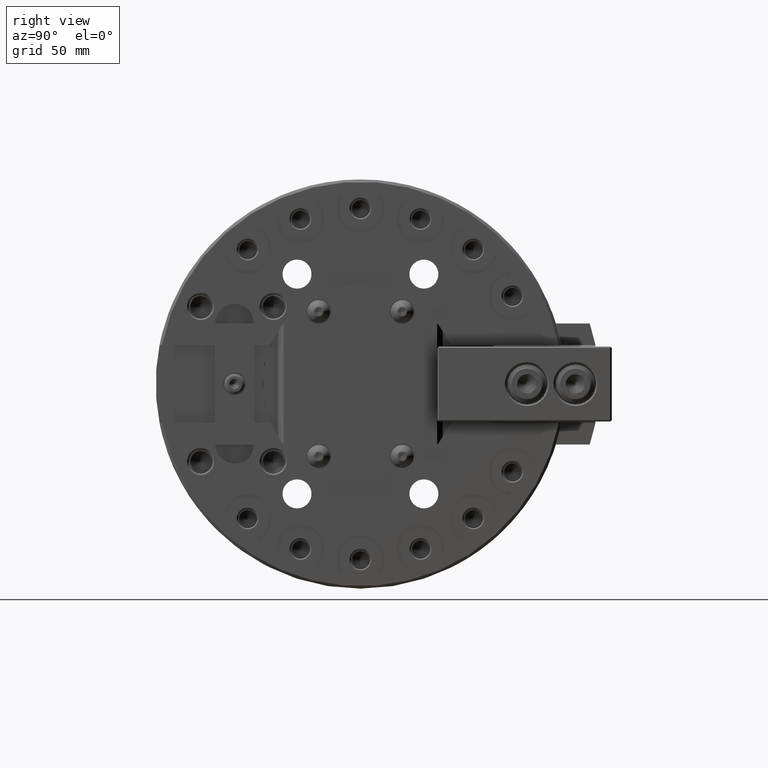
[diagram: clean part render]
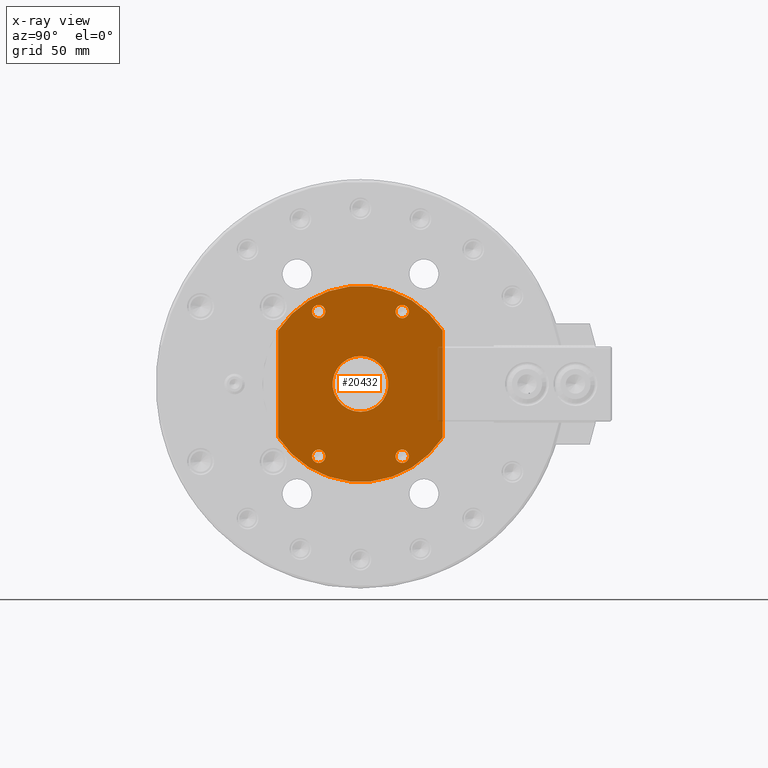
[diagram: x-ray — body ghosted, one internal face saturated and labeled with its STEP entity id]
A machine part, right view, then the same camera in x-ray: the body is ghosted and one INTERNAL B-rep face — a face not visible from any outside direction — is saturated and labeled: STEP entity #20432.
In plain terms, the highlighted planar face has unit normal (-1, 0, 0).
Its self-contained STEP definition (entity closure, byte-faithful):
#1413=LINE('',#32249,#3530);
#1414=LINE('',#32251,#3531);
#3530=VECTOR('',#26326,1000.);
#3531=VECTOR('',#26327,1000.);
#7653=ORIENTED_EDGE('',*,*,#11717,.T.);
#7654=ORIENTED_EDGE('',*,*,#11718,.F.);
#7655=ORIENTED_EDGE('',*,*,#11719,.F.);
#7656=ORIENTED_EDGE('',*,*,#11715,.F.);
#7657=ORIENTED_EDGE('',*,*,#11720,.T.);
#7658=ORIENTED_EDGE('',*,*,#11721,.T.);
#7659=ORIENTED_EDGE('',*,*,#11722,.T.);
#7660=ORIENTED_EDGE('',*,*,#11723,.T.);
#7661=ORIENTED_EDGE('',*,*,#11724,.F.);
#11715=EDGE_CURVE('',#14121,#14122,#15472,.T.);
#11717=EDGE_CURVE('',#14123,#14123,#15473,.T.);
#11718=EDGE_CURVE('',#14124,#14124,#15474,.T.);
#11719=EDGE_CURVE('',#14122,#14125,#1413,.T.);
#11720=EDGE_CURVE('',#14121,#14126,#1414,.T.);
#11721=EDGE_CURVE('',#14126,#14125,#15475,.T.);
#11722=EDGE_CURVE('',#14127,#14127,#15476,.T.);
#11723=EDGE_CURVE('',#14128,#14128,#15477,.T.);
#11724=EDGE_CURVE('',#14129,#14129,#15478,.T.);
#14121=VERTEX_POINT('',#32240);
#14122=VERTEX_POINT('',#32242);
#14123=VERTEX_POINT('',#32246);
#14124=VERTEX_POINT('',#32248);
#14125=VERTEX_POINT('',#32250);
#14126=VERTEX_POINT('',#32252);
#14127=VERTEX_POINT('',#32255);
#14128=VERTEX_POINT('',#32257);
#14129=VERTEX_POINT('',#32259);
#15472=CIRCLE('',#22334,40.5);
#15473=CIRCLE('',#22336,11.5);
#15474=CIRCLE('',#22337,2.75000000000001);
#15475=CIRCLE('',#22338,40.5);
#15476=CIRCLE('',#22339,2.75000000000001);
#15477=CIRCLE('',#22340,2.75000000000001);
#15478=CIRCLE('',#22341,2.75000000000001);
#16596=EDGE_LOOP('',(#7653));
#16597=EDGE_LOOP('',(#7654));
#16598=EDGE_LOOP('',(#7655,#7656,#7657,#7658));
#16599=EDGE_LOOP('',(#7659));
#16600=EDGE_LOOP('',(#7660));
#16601=EDGE_LOOP('',(#7661));
#18245=FACE_BOUND('',#16596,.T.);
#18246=FACE_BOUND('',#16597,.T.);
#18247=FACE_BOUND('',#16598,.T.);
#18248=FACE_BOUND('',#16599,.T.);
#18249=FACE_BOUND('',#16600,.T.);
#18250=FACE_BOUND('',#16601,.T.);
#19287=PLANE('',#22335);
#20432=ADVANCED_FACE('',(#18245,#18246,#18247,#18248,#18249,#18250),#19287,
 .T.);
#22334=AXIS2_PLACEMENT_3D('',#32241,#26317,#26318);
#22335=AXIS2_PLACEMENT_3D('',#32244,#26320,#26321);
#22336=AXIS2_PLACEMENT_3D('',#32245,#26322,#26323);
#22337=AXIS2_PLACEMENT_3D('',#32247,#26324,#26325);
#22338=AXIS2_PLACEMENT_3D('',#32253,#26328,#26329);
#22339=AXIS2_PLACEMENT_3D('',#32254,#26330,#26331);
#22340=AXIS2_PLACEMENT_3D('',#32256,#26332,#26333);
#22341=AXIS2_PLACEMENT_3D('',#32258,#26334,#26335);
#26317=DIRECTION('',(1.,0.,0.));
#26318=DIRECTION('',(0.,0.,-1.));
#26320=DIRECTION('',(-1.,0.,0.));
#26321=DIRECTION('',(0.,0.,1.));
#26322=DIRECTION('',(1.,0.,0.));
#26323=DIRECTION('',(0.,0.,-1.));
#26324=DIRECTION('',(-1.,0.,0.));
#26325=DIRECTION('',(0.,0.,1.));
#26326=DIRECTION('',(0.,0.,1.));
#26327=DIRECTION('',(0.,6.98296672221876E-15,1.));
#26328=DIRECTION('',(-1.,0.,0.));
#26329=DIRECTION('',(0.,0.,1.));
#26330=DIRECTION('',(1.,0.,0.));
#26331=DIRECTION('',(0.,6.98296672221876E-15,1.));
#26332=DIRECTION('',(1.,0.,0.));
#26333=DIRECTION('',(0.,0.,-1.));
#26334=DIRECTION('',(-1.,0.,0.));
#26335=DIRECTION('',(0.,6.98296672221876E-15,-1.));
#32240=CARTESIAN_POINT('',(-4.70000000000001,-34.0000000000002,-22.0056810846651));
#32241=CARTESIAN_POINT('',(-4.70000000000001,0.,0.));
#32242=CARTESIAN_POINT('',(-4.70000000000001,34.,-22.0056810846654));
#32244=CARTESIAN_POINT('',(-4.7,-1.4140507612493E-13,-40.5));
#32245=CARTESIAN_POINT('',(-4.7,0.,0.));
#32246=CARTESIAN_POINT('',(-4.7,0.,-11.5));
#32247=CARTESIAN_POINT('',(-4.7,17.25,-29.8778764305631));
#32248=CARTESIAN_POINT('',(-4.7,17.25,-27.1278764305631));
#32249=CARTESIAN_POINT('',(-4.70000000000001,34.,-40.5));
#32250=CARTESIAN_POINT('',(-4.70000000000001,34.,22.0056810846654));
#32251=CARTESIAN_POINT('',(-4.70000000000001,-34.0000000000003,-40.4999999999998));
#32252=CARTESIAN_POINT('',(-4.70000000000001,-34.0000000000002,22.0056810846651));
#32253=CARTESIAN_POINT('',(-4.70000000000001,0.,0.));
#32254=CARTESIAN_POINT('',(-4.7,-17.2500000000003,-29.877876430563));
#32255=CARTESIAN_POINT('',(-4.7,-17.2500000000002,-27.127876430563));
#32256=CARTESIAN_POINT('',(-4.7,17.25,29.8778764305631));
#32257=CARTESIAN_POINT('',(-4.7,17.25,27.1278764305631));
#32258=CARTESIAN_POINT('',(-4.7,-17.2500000000003,29.877876430563));
#32259=CARTESIAN_POINT('',(-4.7,-17.2500000000002,27.127876430563));